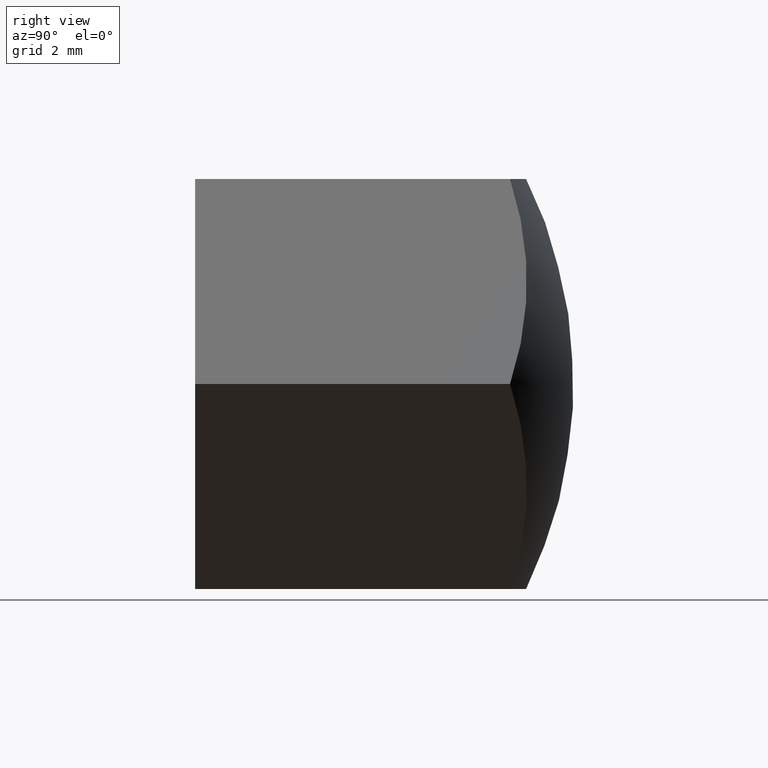
[diagram: clean part render]
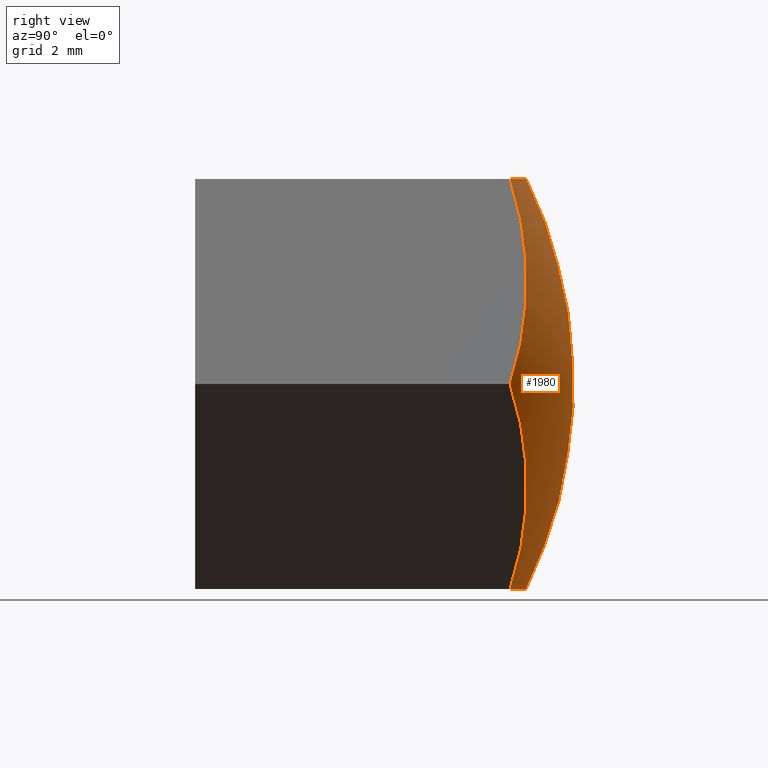
[diagram: same view with one face highlighted and labeled with its STEP entity id]
A machine part, right view. The second image highlights one B-rep face of the part: STEP entity #1980.
In plain terms, the highlighted spherical surface has radius 15 mm.
Its self-contained STEP definition (entity closure, byte-faithful):
#93 = CIRCLE ( 'NONE', #14774, 13.51850583459577848 ) ;
#116 = VERTEX_POINT ( 'NONE', #11095 ) ;
#557 = AXIS2_PLACEMENT_3D ( 'NONE', #9009, #10179, #12462 ) ;
#1589 = ORIENTED_EDGE ( 'NONE', *, *, #5366, .F. ) ;
#1637 = CARTESIAN_POINT ( 'NONE',  ( 7.511572993685803045E-16, -3.000000000000000888, -6.500000000000000888 ) ) ;
#1876 = CARTESIAN_POINT ( 'NONE',  ( 3.752776749732569250, 9.987173159185438465, -6.500000000000001776 ) ) ;
#1980 = ADVANCED_FACE ( 'NONE', ( #5737 ), #3757, .T. ) ;
#2106 = CARTESIAN_POINT ( 'NONE',  ( -5.629165124598849879, -3.000000000000000888, -3.249999999999999556 ) ) ;
#2327 = AXIS2_PLACEMENT_3D ( 'NONE', #2106, #3260, #11283 ) ;
#2382 = DIRECTION ( 'NONE',  ( 0.5000000000000004441, 1.764429300584336178E-15, 0.8660254037844384856 ) ) ;
#2756 = ORIENTED_EDGE ( 'NONE', *, *, #11063, .F. ) ;
#2797 = DIRECTION ( 'NONE',  ( 1.000000000000000000, 0.000000000000000000, 1.283221309515881126E-16 ) ) ;
#3223 = CARTESIAN_POINT ( 'NONE',  ( 0.000000000000000000, -3.000000000000000888, 0.000000000000000000 ) ) ;
#3260 = DIRECTION ( 'NONE',  ( -0.8660254037844388186, 0.000000000000000000, -0.5000000000000001110 ) ) ;
#3757 = SPHERICAL_SURFACE ( 'NONE', #6120, 15.00000000000000178 ) ;
#3841 = EDGE_CURVE ( 'NONE', #14686, #11361, #10254, .T. ) ;
#3847 = CARTESIAN_POINT ( 'NONE',  ( 7.505553499465135836, 9.987173159185438465, 4.336808689942017736E-15 ) ) ;
#4584 = ORIENTED_EDGE ( 'NONE', *, *, #7138, .F. ) ;
#4883 = CARTESIAN_POINT ( 'NONE',  ( -7.505553499465135836, 9.987173159185438465, -2.602085213965210642E-15 ) ) ;
#5335 = DIRECTION ( 'NONE',  ( 0.000000000000000000, 0.000000000000000000, 1.000000000000000000 ) ) ;
#5342 = CIRCLE ( 'NONE', #11009, 13.51850583459577670 ) ;
#5366 = EDGE_CURVE ( 'NONE', #116, #7564, #9520, .T. ) ;
#5704 = VERTEX_POINT ( 'NONE', #4883 ) ;
#5737 = FACE_OUTER_BOUND ( 'NONE', #14368, .T. ) ;
#5951 = ORIENTED_EDGE ( 'NONE', *, *, #13109, .F. ) ;
#6120 = AXIS2_PLACEMENT_3D ( 'NONE', #3223, #5335, #12440 ) ;
#6313 = AXIS2_PLACEMENT_3D ( 'NONE', #13483, #8896, #11125 ) ;
#6810 = DIRECTION ( 'NONE',  ( -0.8660254037844385966, -0.000000000000000000, 0.5000000000000002220 ) ) ;
#7138 = EDGE_CURVE ( 'NONE', #7564, #5704, #93, .T. ) ;
#7356 = CARTESIAN_POINT ( 'NONE',  ( -3.752776749732565698, 9.987173159185438465, 6.499999999999997335 ) ) ;
#7564 = VERTEX_POINT ( 'NONE', #7356 ) ;
#7863 = AXIS2_PLACEMENT_3D ( 'NONE', #11522, #13886, #2382 ) ;
#8591 = DIRECTION ( 'NONE',  ( 1.155626614413200317E-16, -0.000000000000000000, -1.000000000000000000 ) ) ;
#8718 = EDGE_CURVE ( 'NONE', #12583, #14686, #5342, .T. ) ;
#8896 = DIRECTION ( 'NONE',  ( 2.311253228826399154E-16, -0.000000000000000000, 1.000000000000000000 ) ) ;
#9009 = CARTESIAN_POINT ( 'NONE',  ( 5.629165124598849879, -3.000000000000000888, 3.250000000000000444 ) ) ;
#9313 = CIRCLE ( 'NONE', #557, 13.51850583459578026 ) ;
#9520 = CIRCLE ( 'NONE', #6313, 13.51850583459577848 ) ;
#9635 = CIRCLE ( 'NONE', #2327, 13.51850583459578203 ) ;
#10179 = DIRECTION ( 'NONE',  ( 0.8660254037844385966, -0.000000000000000000, 0.5000000000000001110 ) ) ;
#10254 = CIRCLE ( 'NONE', #7863, 13.51850583459577848 ) ;
#10312 = DIRECTION ( 'NONE',  ( -0.5000000000000002220, 0.000000000000000000, -0.8660254037844385966 ) ) ;
#10728 = CARTESIAN_POINT ( 'NONE',  ( -3.752776749732564809, 9.987173159185438465, -6.500000000000004441 ) ) ;
#11009 = AXIS2_PLACEMENT_3D ( 'NONE', #1637, #8591, #2797 ) ;
#11063 = EDGE_CURVE ( 'NONE', #11361, #116, #9313, .T. ) ;
#11095 = CARTESIAN_POINT ( 'NONE',  ( 3.752776749732576800, 9.987173159185438465, 6.499999999999995559 ) ) ;
#11125 = DIRECTION ( 'NONE',  ( -1.000000000000000000, -3.560939133906569360E-15, 2.566442619031761758E-16 ) ) ;
#11283 = DIRECTION ( 'NONE',  ( 0.5000000000000000000, 1.764429300584335784E-15, -0.8660254037844387076 ) ) ;
#11361 = VERTEX_POINT ( 'NONE', #3847 ) ;
#11522 = CARTESIAN_POINT ( 'NONE',  ( 5.629165124598847214, -3.000000000000000888, -3.250000000000001332 ) ) ;
#11563 = CARTESIAN_POINT ( 'NONE',  ( -5.629165124598849879, -3.000000000000000888, 3.250000000000000888 ) ) ;
#12440 = DIRECTION ( 'NONE',  ( 1.000000000000000000, 0.000000000000000000, 0.000000000000000000 ) ) ;
#12462 = DIRECTION ( 'NONE',  ( -0.5000000000000001110, 0.000000000000000000, 0.8660254037844385966 ) ) ;
#12583 = VERTEX_POINT ( 'NONE', #10728 ) ;
#13109 = EDGE_CURVE ( 'NONE', #5704, #12583, #9635, .T. ) ;
#13483 = CARTESIAN_POINT ( 'NONE',  ( 1.502314598737158637E-15, -3.000000000000000888, 6.499999999999996447 ) ) ;
#13886 = DIRECTION ( 'NONE',  ( 0.8660254037844384856, -0.000000000000000000, -0.5000000000000004441 ) ) ;
#14024 = ORIENTED_EDGE ( 'NONE', *, *, #3841, .F. ) ;
#14300 = ORIENTED_EDGE ( 'NONE', *, *, #8718, .F. ) ;
#14368 = EDGE_LOOP ( 'NONE', ( #14024, #14300, #5951, #4584, #1589, #2756 ) ) ;
#14686 = VERTEX_POINT ( 'NONE', #1876 ) ;
#14774 = AXIS2_PLACEMENT_3D ( 'NONE', #11563, #6810, #10312 ) ;